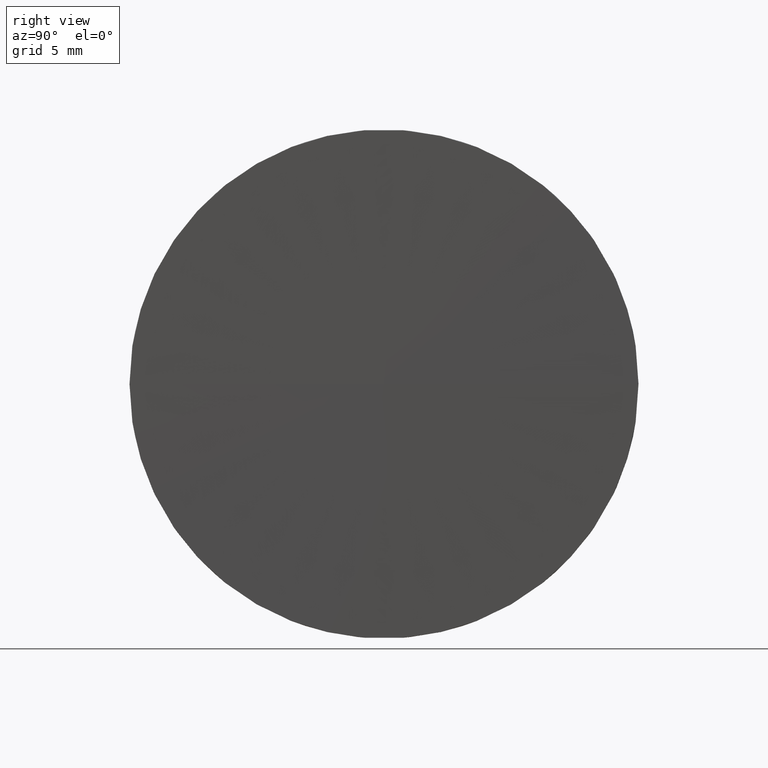
[diagram: clean part render]
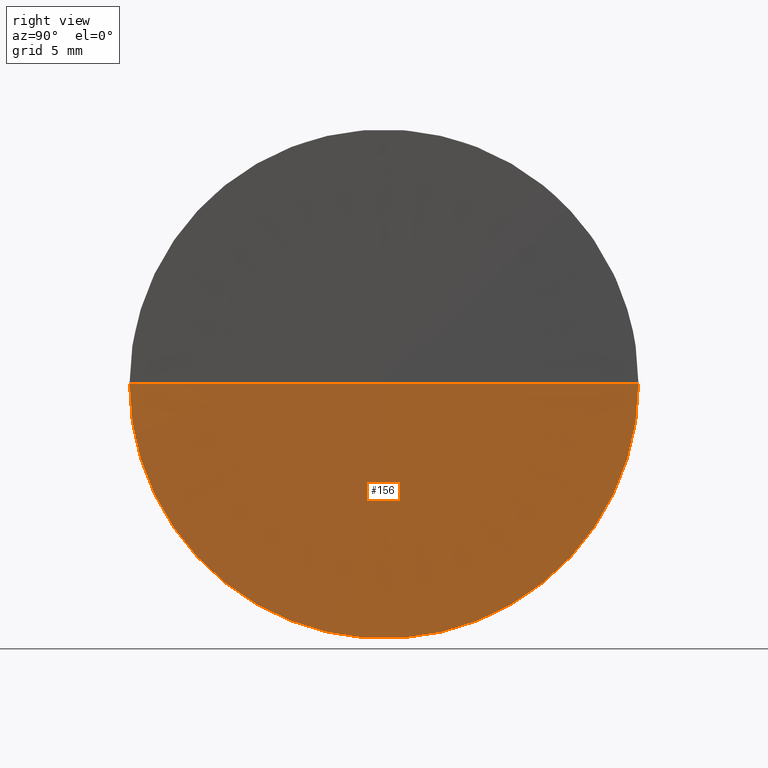
[diagram: same view with one face highlighted and labeled with its STEP entity id]
A machine part, right view. The second image highlights one B-rep face of the part: STEP entity #156.
In plain terms, the highlighted conical surface has half-angle 89.813 deg.
Its self-contained STEP definition (entity closure, byte-faithful):
#24 = EDGE_CURVE ( 'NONE', #34, #175, #39, .T. ) ;
#27 = EDGE_LOOP ( 'NONE', ( #153, #168, #182 ) ) ;
#33 = DIRECTION ( 'NONE',  ( -1.795438797635994800E-016, 1.000000000000000000, 1.224640307732949200E-016 ) ) ;
#34 = VERTEX_POINT ( 'NONE', #155 ) ;
#35 = AXIS2_PLACEMENT_3D ( 'NONE', #62, #66, #158 ) ;
#36 = VECTOR ( 'NONE', #105, 1000.000000000000200 ) ;
#39 = CIRCLE ( 'NONE', #178, 19.05251848552478600 ) ;
#51 = LINE ( 'NONE', #133, #152 ) ;
#57 = DIRECTION ( 'NONE',  ( -0.9999946993578815400, 0.003255957023718254200, -0.0000000000000000000 ) ) ;
#62 = CARTESIAN_POINT ( 'NONE',  ( 270.1615312381603600, 77.24056043020593200, 0.0000000000000000000 ) ) ;
#64 = FACE_OUTER_BOUND ( 'NONE', #27, .T. ) ;
#66 = DIRECTION ( 'NONE',  ( -0.9999946993578815400, 0.003255957023718254200, -0.0000000000000000000 ) ) ;
#68 = EDGE_CURVE ( 'NONE', #138, #34, #51, .T. ) ;
#76 = CARTESIAN_POINT ( 'NONE',  ( 270.1617025640068200, 77.24055987237336800, 0.0000000000000000000 ) ) ;
#103 = CARTESIAN_POINT ( 'NONE',  ( 270.1613599123139700, 77.18794151139643100, 0.0000000000000000000 ) ) ;
#105 = DIRECTION ( 'NONE',  ( -0.006511879530110813700, -0.9999787974877193400, 0.0000000000000000000 ) ) ;
#109 = CARTESIAN_POINT ( 'NONE',  ( 270.0376342012418100, 58.18834435912466300, 0.0000000000000000000 ) ) ;
#128 = LINE ( 'NONE', #103, #36 ) ;
#133 = CARTESIAN_POINT ( 'NONE',  ( 270.1617025640068200, 77.29317934901541800, 6.443993206765571700E-018 ) ) ;
#138 = VERTEX_POINT ( 'NONE', #76 ) ;
#142 = DIRECTION ( 'NONE',  ( -0.003255957023717566800, -0.9999946993578814300, 0.0000000000000000000 ) ) ;
#152 = VECTOR ( 'NONE', #33, 1000.000000000000000 ) ;
#153 = ORIENTED_EDGE ( 'NONE', *, *, #68, .F. ) ;
#155 = CARTESIAN_POINT ( 'NONE',  ( 270.1617025640068200, 96.29317934901035900, 2.333260577898748200E-015 ) ) ;
#156 = ADVANCED_FACE ( 'NONE', ( #64 ), #165, .T. ) ;
#158 = DIRECTION ( 'NONE',  ( -0.003255957023403785300, -0.9999946993578825400, 0.0000000000000000000 ) ) ;
#165 = CONICAL_SURFACE ( 'NONE', #35, 0.05261919772502674600, 1.567540364018278300 ) ;
#167 = EDGE_CURVE ( 'NONE', #138, #175, #128, .T. ) ;
#168 = ORIENTED_EDGE ( 'NONE', *, *, #167, .T. ) ;
#175 = VERTEX_POINT ( 'NONE', #109 ) ;
#178 = AXIS2_PLACEMENT_3D ( 'NONE', #184, #57, #142 ) ;
#182 = ORIENTED_EDGE ( 'NONE', *, *, #24, .F. ) ;
#184 = CARTESIAN_POINT ( 'NONE',  ( 270.0996683826243200, 77.24076185407258800, 0.0000000000000000000 ) ) ;